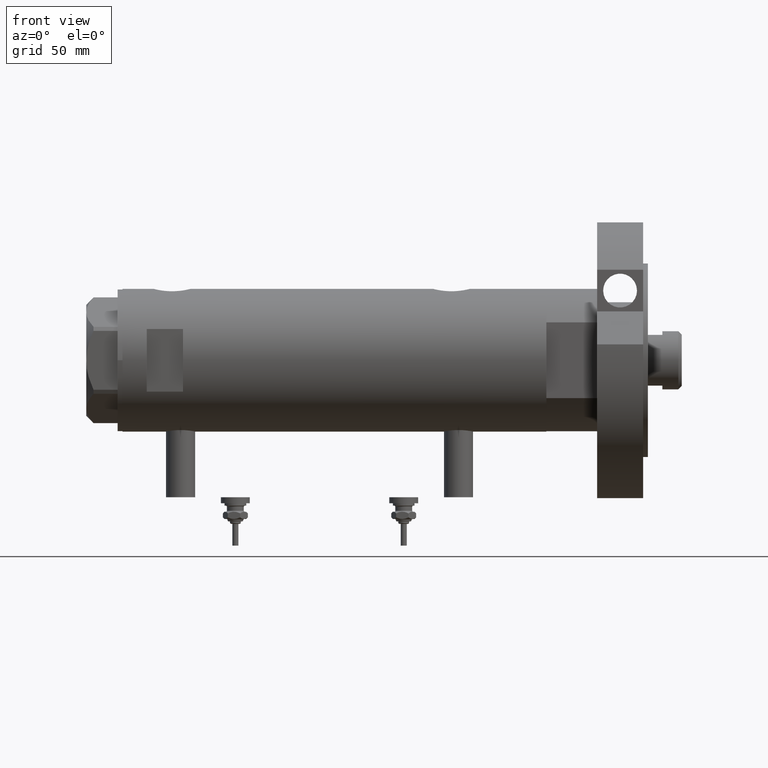
[diagram: clean part render]
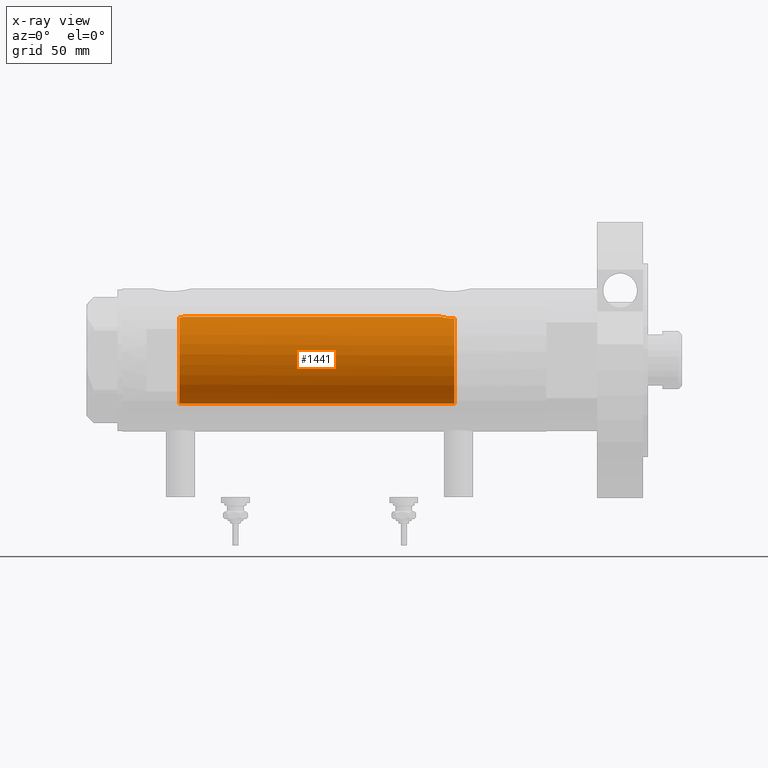
[diagram: x-ray — body ghosted, one internal face saturated and labeled with its STEP entity id]
A machine part, front view, then the same camera in x-ray: the body is ghosted and one INTERNAL B-rep face — a face not visible from any outside direction — is saturated and labeled: STEP entity #1441.
In plain terms, the highlighted cylindrical surface (partial cylindrical patch) has radius 18 mm, axis along (1, 0, -0).
Its self-contained STEP definition (entity closure, byte-faithful):
#20 = DIRECTION ( 'NONE',  ( 0.000000000000000000, 0.000000000000000000, 1.000000000000000000 ) ) ;
#152 = CARTESIAN_POINT ( 'NONE',  ( 0.000000000000000000, 0.000000000000000000, 87.59999999999998010 ) ) ;
#177 = B_SPLINE_CURVE_WITH_KNOTS ( 'NONE', 3,
 ( #4427, #6682, #7264, #3196, #2059, #329, #2659, #6761, #6183, #372 ),
 .UNSPECIFIED., .F., .F.,
 ( 4, 2, 2, 2, 4 ),
 ( 0.000000000000000000, 0.001102956581910070682, 0.002205913163820141798, 0.003308869745730213564, 0.004411826327640285331 ),
 .UNSPECIFIED. ) ;
#298 = EDGE_CURVE ( 'NONE', #3117, #4018, #6587, .T. ) ;
#329 = CARTESIAN_POINT ( 'NONE',  ( 17.83332390923721533, -2.466220319593701138, 62.89048875048365517 ) ) ;
#372 = CARTESIAN_POINT ( 'NONE',  ( 17.58783030962034033, -3.829911878881809173, 64.09999999999999432 ) ) ;
#388 = CARTESIAN_POINT ( 'NONE',  ( 17.34665145232710515, -4.806531086046565981, -49.23913341666350618 ) ) ;
#466 = ORIENTED_EDGE ( 'NONE', *, *, #4426, .F. ) ;
#686 = VERTEX_POINT ( 'NONE', #6230 ) ;
#689 = FACE_OUTER_BOUND ( 'NONE', #3042, .T. ) ;
#890 = CARTESIAN_POINT ( 'NONE',  ( 17.99999999999999645, -0.1843597763241263676, -43.53499999999998948 ) ) ;
#923 = CARTESIAN_POINT ( 'NONE',  ( 17.33821808943283216, -4.836569767017236288, -47.75823404381377202 ) ) ;
#1324 = ORIENTED_EDGE ( 'NONE', *, *, #6850, .T. ) ;
#1441 = ADVANCED_FACE ( 'NONE', ( #689 ), #3630, .F. ) ;
#1459 = CARTESIAN_POINT ( 'NONE',  ( 17.37991340314490785, -4.684530256828848493, -47.03638461192320364 ) ) ;
#1522 = EDGE_CURVE ( 'NONE', #3117, #4598, #6769, .T. ) ;
#1534 = CARTESIAN_POINT ( 'NONE',  ( -18.00000000000000000, 0.000000000000000000, 87.59999999999998010 ) ) ;
#1902 = VERTEX_POINT ( 'NONE', #6226 ) ;
#2059 = CARTESIAN_POINT ( 'NONE',  ( 17.91197612045793619, -1.808534151376000265, 62.56883769349537516 ) ) ;
#2073 = CARTESIAN_POINT ( 'NONE',  ( 17.41145422212636618, -4.568075757751900667, -46.68573299053986148 ) ) ;
#2318 = AXIS2_PLACEMENT_3D ( 'NONE', #152, #4242, #4781 ) ;
#2573 = VECTOR ( 'NONE', #3855, 1000.000000000000000 ) ;
#2639 = CARTESIAN_POINT ( 'NONE',  ( 17.53680980608543649, -4.063678955652867408, -45.70014584461345919 ) ) ;
#2659 = CARTESIAN_POINT ( 'NONE',  ( 17.78689333688353358, -2.776822659814067507, 63.08837617090291872 ) ) ;
#2955 = DIRECTION ( 'NONE',  ( 1.000000000000000000, 0.000000000000000000, 0.000000000000000000 ) ) ;
#3042 = EDGE_LOOP ( 'NONE', ( #7004, #3690, #466, #1324, #6575, #6373 ) ) ;
#3117 = VERTEX_POINT ( 'NONE', #4173 ) ;
#3170 = CARTESIAN_POINT ( 'NONE',  ( 17.76113839466168187, -2.926207082530021264, -44.50911996042638208 ) ) ;
#3196 = CARTESIAN_POINT ( 'NONE',  ( 17.94467453319816030, -1.455166008437397629, 62.44318072553842569 ) ) ;
#3630 = CYLINDRICAL_SURFACE ( 'NONE', #2318, 18.00000000000000000 ) ;
#3632 = VECTOR ( 'NONE', #3921, 1000.000000000000000 ) ;
#3690 = ORIENTED_EDGE ( 'NONE', *, *, #7552, .T. ) ;
#3793 = CARTESIAN_POINT ( 'NONE',  ( 17.49057517990651078, -4.255095079290335924, -46.01249222525177629 ) ) ;
#3838 = CARTESIAN_POINT ( 'NONE',  ( 17.37157951943345680, -4.714681855650495912, -49.60000000000000142 ) ) ;
#3855 = DIRECTION ( 'NONE',  ( -0.000000000000000000, -0.000000000000000000, -1.000000000000000000 ) ) ;
#3904 = CARTESIAN_POINT ( 'NONE',  ( 17.33258131920085177, -4.856098292894137636, -48.87181853595665615 ) ) ;
#3921 = DIRECTION ( 'NONE',  ( -0.000000000000000000, -0.000000000000000000, -1.000000000000000000 ) ) ;
#3979 = VERTEX_POINT ( 'NONE', #3838 ) ;
#4018 = VERTEX_POINT ( 'NONE', #6250 ) ;
#4173 = CARTESIAN_POINT ( 'NONE',  ( -18.00000000000000000, 0.000000000000000000, 64.09999999999999432 ) ) ;
#4242 = DIRECTION ( 'NONE',  ( -0.000000000000000000, -0.000000000000000000, -1.000000000000000000 ) ) ;
#4321 = CARTESIAN_POINT ( 'NONE',  ( 17.98578085412773220, -0.7388632979187831351, -43.58783263922211404 ) ) ;
#4354 = CARTESIAN_POINT ( 'NONE',  ( 17.85233710017094566, -2.306965814323738595, -44.11276266371618249 ) ) ;
#4358 = AXIS2_PLACEMENT_3D ( 'NONE', #5881, #7535, #5164 ) ;
#4426 = EDGE_CURVE ( 'NONE', #3979, #1902, #6876, .T. ) ;
#4427 = CARTESIAN_POINT ( 'NONE',  ( 18.00000000000000000, 0.000000000000000000, 62.23499999999999233 ) ) ;
#4472 = CARTESIAN_POINT ( 'NONE',  ( 17.91207243579358632, -1.808254927071297313, -43.86838658940776980 ) ) ;
#4598 = VERTEX_POINT ( 'NONE', #5088 ) ;
#4781 = DIRECTION ( 'NONE',  ( -1.000000000000000000, 0.000000000000000000, 0.000000000000000000 ) ) ;
#4900 = CARTESIAN_POINT ( 'NONE',  ( 17.94411621822183633, -1.462318180775788568, -43.74532018047459303 ) ) ;
#4917 = LINE ( 'NONE', #7328, #3632 ) ;
#4972 = CARTESIAN_POINT ( 'NONE',  ( 17.97721305204034792, -0.9231636963562631637, -43.61982822371822266 ) ) ;
#5054 = CARTESIAN_POINT ( 'NONE',  ( 17.32819690210315855, -4.871720223791778714, -48.13420793424216981 ) ) ;
#5088 = CARTESIAN_POINT ( 'NONE',  ( -18.00000000000000000, 0.000000000000000000, -49.60000000000000853 ) ) ;
#5164 = DIRECTION ( 'NONE',  ( -1.000000000000000000, 0.000000000000000000, 0.000000000000000000 ) ) ;
#5627 = CARTESIAN_POINT ( 'NONE',  ( 17.78501549309440222, -2.778062367771706231, -44.40196575702887571 ) ) ;
#5830 = CIRCLE ( 'NONE', #4358, 18.00000000000000000 ) ;
#5881 = CARTESIAN_POINT ( 'NONE',  ( 0.000000000000000000, 0.000000000000000000, -49.60000000000000853 ) ) ;
#5954 = EDGE_CURVE ( 'NONE', #686, #4018, #177, .T. ) ;
#6129 = CARTESIAN_POINT ( 'NONE',  ( 17.99716838826709520, -0.3690012331666944201, -43.54544422515623836 ) ) ;
#6183 = CARTESIAN_POINT ( 'NONE',  ( 17.63693340989345515, -3.604419224588179649, 63.81212766824007332 ) ) ;
#6226 = CARTESIAN_POINT ( 'NONE',  ( 18.00000000000000000, 5.958021437579254357E-16, -43.53499999999999659 ) ) ;
#6230 = CARTESIAN_POINT ( 'NONE',  ( 18.00000000000000000, 0.000000000000000000, 62.23499999999999233 ) ) ;
#6238 = CARTESIAN_POINT ( 'NONE',  ( 17.83055549281852237, -2.468946622824478077, -44.20402443991358865 ) ) ;
#6250 = CARTESIAN_POINT ( 'NONE',  ( 17.58783030962034033, -3.829911878881809173, 64.09999999999999432 ) ) ;
#6373 = ORIENTED_EDGE ( 'NONE', *, *, #298, .T. ) ;
#6575 = ORIENTED_EDGE ( 'NONE', *, *, #1522, .F. ) ;
#6587 = CIRCLE ( 'NONE', #6828, 18.00000000000000000 ) ;
#6682 = CARTESIAN_POINT ( 'NONE',  ( 18.00000000000000355, -0.3730735969061040325, 62.23499999999998522 ) ) ;
#6696 = CARTESIAN_POINT ( 'NONE',  ( 17.37157951943345680, -4.714681855650495912, -49.60000000000000142 ) ) ;
#6761 = CARTESIAN_POINT ( 'NONE',  ( 17.68806959355791619, -3.349106256179494423, 63.55213344176306833 ) ) ;
#6769 = LINE ( 'NONE', #1534, #2573 ) ;
#6828 = AXIS2_PLACEMENT_3D ( 'NONE', #7565, #20, #2955 ) ;
#6850 = EDGE_CURVE ( 'NONE', #3979, #4598, #5830, .T. ) ;
#6876 = B_SPLINE_CURVE_WITH_KNOTS ( 'NONE', 3,
 ( #6696, #388, #3904, #5054, #923, #1459, #2073, #3793, #2639, #7238, #7313, #3170, #5627, #6238, #4354, #4472, #4900, #4972, #4321, #6129, #890, #7392 ),
 .UNSPECIFIED., .F., .F.,
 ( 4, 2, 2, 2, 2, 2, 2, 2, 2, 2, 4 ),
 ( 0.006434066725458738659, 0.007540005695425722881, 0.008645944665392707104, 0.009751883635359691327, 0.01085782260532667555, 0.01196376157529365977, 0.01251673106027715102, 0.01306970054526064226, 0.01417563951522762475, 0.01472860900021111773, 0.01528157848519461244 ),
 .UNSPECIFIED. ) ;
#7004 = ORIENTED_EDGE ( 'NONE', *, *, #5954, .F. ) ;
#7238 = CARTESIAN_POINT ( 'NONE',  ( 17.63516507807922906, -3.613050995810182631, -45.12150009659158201 ) ) ;
#7264 = CARTESIAN_POINT ( 'NONE',  ( 17.98842269988416831, -0.7385803848020507933, 62.27734794098787319 ) ) ;
#7313 = CARTESIAN_POINT ( 'NONE',  ( 17.68752450041759516, -3.351772203450730458, -44.85493447381011833 ) ) ;
#7328 = CARTESIAN_POINT ( 'NONE',  ( 18.00000000000000000, 2.204364238465235428E-15, 87.59999999999998010 ) ) ;
#7392 = CARTESIAN_POINT ( 'NONE',  ( 18.00000000000000000, 5.958021437579254357E-16, -43.53499999999999659 ) ) ;
#7535 = DIRECTION ( 'NONE',  ( 0.000000000000000000, 0.000000000000000000, -1.000000000000000000 ) ) ;
#7552 = EDGE_CURVE ( 'NONE', #686, #1902, #4917, .T. ) ;
#7565 = CARTESIAN_POINT ( 'NONE',  ( 0.000000000000000000, 0.000000000000000000, 64.09999999999999432 ) ) ;